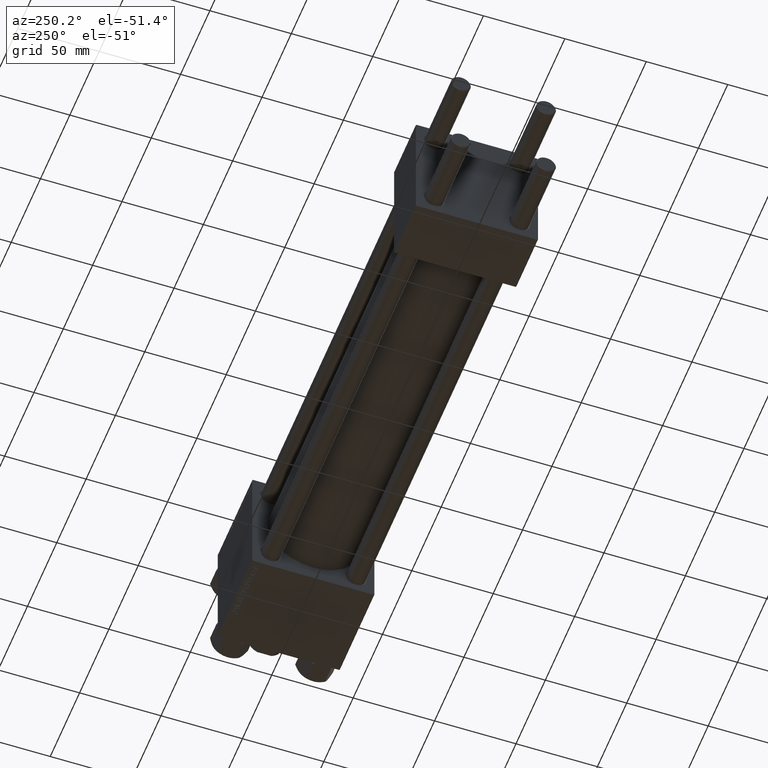
[diagram: clean part render]
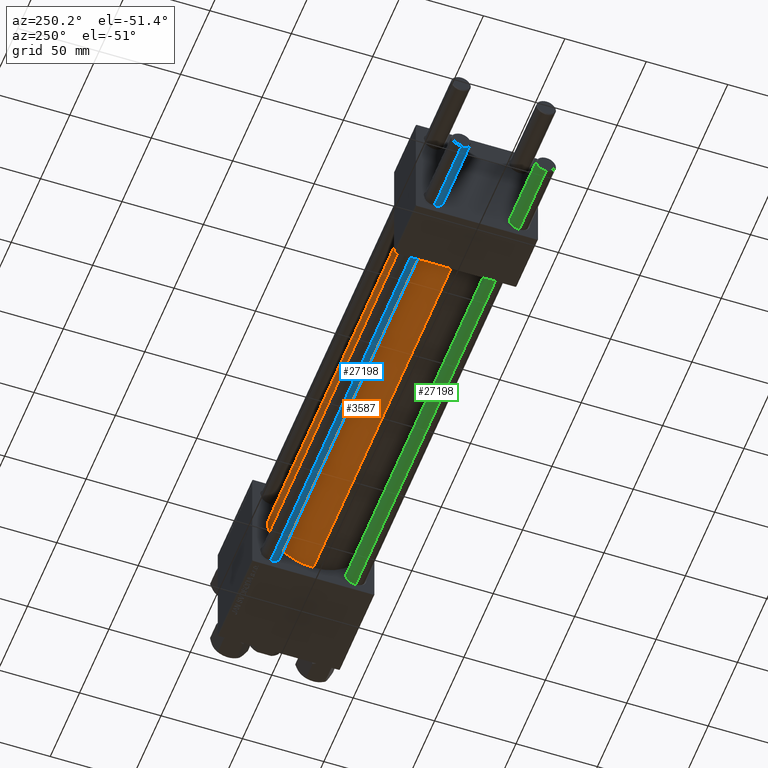
[diagram: same view with three faces highlighted in distinct colors, each labeled with its STEP entity id]
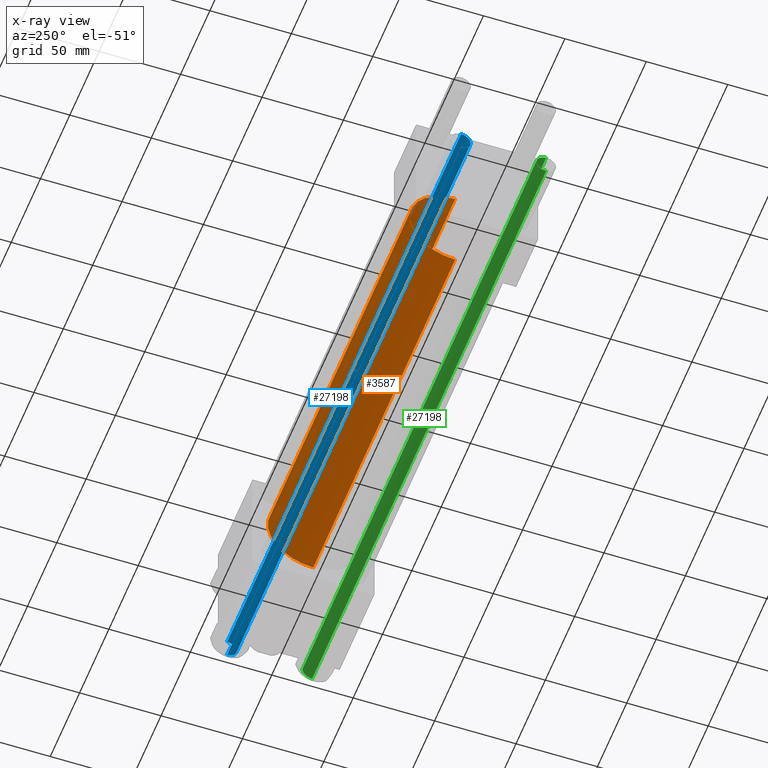
[diagram: x-ray of the same camera — body ghosted, the three highlighted faces saturated]
A machine part, auxiliary view with three faces highlighted in distinct colors.
The next image is the same camera in x-ray (body ghosted, the three faces saturated) — at least one of them is partly hidden behind the body in this view.
Their STEP definitions:

[orange] entity #3587 — the highlighted cylindrical surface (partial cylindrical patch) has radius 28 mm, axis along (-1, -0, -0).
#88 = CARTESIAN_POINT ( 'NONE',  ( 278.9999999999999432, 0.000000000000000000, 0.000000000000000000 ) ) ;
#870 = VECTOR ( 'NONE', #37811, 1000.000000000000000 ) ;
#2153 = DIRECTION ( 'NONE',  ( 0.000000000000000000, 0.000000000000000000, 1.000000000000000000 ) ) ;
#3332 = CARTESIAN_POINT ( 'NONE',  ( 278.9999999999999432, 3.429011037612589276E-15, -28.00000000000000000 ) ) ;
#3587 = ADVANCED_FACE ( 'NONE', ( #7172 ), #23070, .T. ) ;
#4455 = CARTESIAN_POINT ( 'NONE',  ( 37.00000000000000711, 3.429011037612589276E-15, -28.00000000000000000 ) ) ;
#7172 = FACE_OUTER_BOUND ( 'NONE', #20279, .T. ) ;
#8524 = CARTESIAN_POINT ( 'NONE',  ( 37.00000000000000711, 0.000000000000000000, 28.00000000000000000 ) ) ;
#9769 = DIRECTION ( 'NONE',  ( -1.000000000000000000, -0.000000000000000000, -0.000000000000000000 ) ) ;
#11150 = ORIENTED_EDGE ( 'NONE', *, *, #24212, .F. ) ;
#11441 = AXIS2_PLACEMENT_3D ( 'NONE', #36853, #29292, #44671 ) ;
#13552 = CARTESIAN_POINT ( 'NONE',  ( 278.9999999999999432, 0.000000000000000000, 28.00000000000000000 ) ) ;
#14661 = VERTEX_POINT ( 'NONE', #4455 ) ;
#15877 = ORIENTED_EDGE ( 'NONE', *, *, #29335, .F. ) ;
#16790 = EDGE_CURVE ( 'NONE', #14661, #33021, #36156, .T. ) ;
#18073 = DIRECTION ( 'NONE',  ( 1.000000000000000000, -0.000000000000000000, 0.000000000000000000 ) ) ;
#19145 = ORIENTED_EDGE ( 'NONE', *, *, #26833, .T. ) ;
#20099 = AXIS2_PLACEMENT_3D ( 'NONE', #88, #37968, #33948 ) ;
#20279 = EDGE_LOOP ( 'NONE', ( #15877, #19145, #44461, #11150 ) ) ;
#23070 = CYLINDRICAL_SURFACE ( 'NONE', #20099, 28.00000000000000000 ) ;
#23411 = CARTESIAN_POINT ( 'NONE',  ( 278.9999999999999432, 3.429011037612589276E-15, -28.00000000000000000 ) ) ;
#24212 = EDGE_CURVE ( 'NONE', #30876, #33021, #48878, .T. ) ;
#26218 = LINE ( 'NONE', #23411, #870 ) ;
#26833 = EDGE_CURVE ( 'NONE', #48657, #14661, #26218, .T. ) ;
#28351 = VECTOR ( 'NONE', #9769, 1000.000000000000000 ) ;
#29292 = DIRECTION ( 'NONE',  ( 1.000000000000000000, 0.000000000000000000, 0.000000000000000000 ) ) ;
#29335 = EDGE_CURVE ( 'NONE', #48657, #30876, #33212, .T. ) ;
#30506 = AXIS2_PLACEMENT_3D ( 'NONE', #41033, #18073, #2153 ) ;
#30876 = VERTEX_POINT ( 'NONE', #49148 ) ;
#33021 = VERTEX_POINT ( 'NONE', #8524 ) ;
#33212 = CIRCLE ( 'NONE', #11441, 28.00000000000000000 ) ;
#33948 = DIRECTION ( 'NONE',  ( 0.000000000000000000, 0.000000000000000000, 1.000000000000000000 ) ) ;
#36156 = CIRCLE ( 'NONE', #30506, 28.00000000000000000 ) ;
#36853 = CARTESIAN_POINT ( 'NONE',  ( 278.9999999999999432, 0.000000000000000000, 0.000000000000000000 ) ) ;
#37811 = DIRECTION ( 'NONE',  ( -1.000000000000000000, -0.000000000000000000, -0.000000000000000000 ) ) ;
#37968 = DIRECTION ( 'NONE',  ( -1.000000000000000000, -0.000000000000000000, -0.000000000000000000 ) ) ;
#41033 = CARTESIAN_POINT ( 'NONE',  ( 37.00000000000000711, 0.000000000000000000, 0.000000000000000000 ) ) ;
#44461 = ORIENTED_EDGE ( 'NONE', *, *, #16790, .T. ) ;
#44671 = DIRECTION ( 'NONE',  ( 0.000000000000000000, 0.000000000000000000, -1.000000000000000000 ) ) ;
#48657 = VERTEX_POINT ( 'NONE', #3332 ) ;
#48878 = LINE ( 'NONE', #13552, #28351 ) ;
#49148 = CARTESIAN_POINT ( 'NONE',  ( 278.9999999999999432, 0.000000000000000000, 28.00000000000000000 ) ) ;

[blue] entity #27198 — the highlighted cylindrical surface (edge-blend (fillet) strip) has radius 6 mm, axis along (1, 0, -0).
#160 = EDGE_CURVE ( 'NONE', #39756, #28341, #42559, .T. ) ;
#279 = ORIENTED_EDGE ( 'NONE', *, *, #38554, .F. ) ;
#453 = ORIENTED_EDGE ( 'NONE', *, *, #12256, .T. ) ;
#519 = DIRECTION ( 'NONE',  ( 1.000000000000000000, 0.000000000000000000, 0.000000000000000000 ) ) ;
#1603 = CARTESIAN_POINT ( 'NONE',  ( 6.000000000000000888, 7.347880794884120722E-16, 0.5000000000000004441 ) ) ;
#2649 = ORIENTED_EDGE ( 'NONE', *, *, #43809, .T. ) ;
#3161 = DIRECTION ( 'NONE',  ( -1.000000000000000000, 0.000000000000000000, 0.000000000000000000 ) ) ;
#4323 = DIRECTION ( 'NONE',  ( -0.000000000000000000, -0.000000000000000000, 1.000000000000000000 ) ) ;
#9235 = EDGE_LOOP ( 'NONE', ( #279, #453, #2649, #21387 ) ) ;
#9689 = CARTESIAN_POINT ( 'NONE',  ( 6.000000000000000888, 7.347880794884120722E-16, 400.0000000000000000 ) ) ;
#11656 = DIRECTION ( 'NONE',  ( 1.000000000000000000, 0.000000000000000000, 0.000000000000000000 ) ) ;
#12147 = DIRECTION ( 'NONE',  ( 0.000000000000000000, 0.000000000000000000, -1.000000000000000000 ) ) ;
#12256 = EDGE_CURVE ( 'NONE', #14703, #25350, #21094, .T. ) ;
#14535 = CYLINDRICAL_SURFACE ( 'NONE', #25091, 6.000000000000000888 ) ;
#14703 = VERTEX_POINT ( 'NONE', #17051 ) ;
#17051 = CARTESIAN_POINT ( 'NONE',  ( 6.000000000000000888, 7.347880794884120722E-16, 399.5000000000000000 ) ) ;
#17855 = AXIS2_PLACEMENT_3D ( 'NONE', #31583, #12147, #519 ) ;
#18215 = VECTOR ( 'NONE', #25092, 1000.000000000000000 ) ;
#19978 = CARTESIAN_POINT ( 'NONE',  ( 0.000000000000000000, 0.000000000000000000, 0.5000000000000004441 ) ) ;
#21094 = CIRCLE ( 'NONE', #17855, 6.000000000000000888 ) ;
#21387 = ORIENTED_EDGE ( 'NONE', *, *, #160, .T. ) ;
#21844 = CARTESIAN_POINT ( 'NONE',  ( -6.000000000000000888, 0.000000000000000000, 399.5000000000000000 ) ) ;
#22485 = LINE ( 'NONE', #42141, #38493 ) ;
#25091 = AXIS2_PLACEMENT_3D ( 'NONE', #34712, #45322, #3161 ) ;
#25092 = DIRECTION ( 'NONE',  ( -0.000000000000000000, -0.000000000000000000, -1.000000000000000000 ) ) ;
#25276 = CARTESIAN_POINT ( 'NONE',  ( -6.000000000000000888, 0.000000000000000000, 0.5000000000000004441 ) ) ;
#25350 = VERTEX_POINT ( 'NONE', #21844 ) ;
#27198 = ADVANCED_FACE ( 'NONE', ( #41772 ), #14535, .T. ) ;
#28341 = VERTEX_POINT ( 'NONE', #1603 ) ;
#31583 = CARTESIAN_POINT ( 'NONE',  ( 0.000000000000000000, 0.000000000000000000, 399.5000000000000000 ) ) ;
#34712 = CARTESIAN_POINT ( 'NONE',  ( 0.000000000000000000, 0.000000000000000000, 400.0000000000000000 ) ) ;
#38493 = VECTOR ( 'NONE', #41406, 1000.000000000000000 ) ;
#38554 = EDGE_CURVE ( 'NONE', #14703, #28341, #44260, .T. ) ;
#39756 = VERTEX_POINT ( 'NONE', #25276 ) ;
#41406 = DIRECTION ( 'NONE',  ( -0.000000000000000000, -0.000000000000000000, -1.000000000000000000 ) ) ;
#41772 = FACE_OUTER_BOUND ( 'NONE', #9235, .T. ) ;
#42141 = CARTESIAN_POINT ( 'NONE',  ( -6.000000000000000888, 0.000000000000000000, 400.0000000000000000 ) ) ;
#42559 = CIRCLE ( 'NONE', #44139, 6.000000000000000888 ) ;
#43809 = EDGE_CURVE ( 'NONE', #25350, #39756, #22485, .T. ) ;
#44139 = AXIS2_PLACEMENT_3D ( 'NONE', #19978, #4323, #11656 ) ;
#44260 = LINE ( 'NONE', #9689, #18215 ) ;
#45322 = DIRECTION ( 'NONE',  ( -0.000000000000000000, -0.000000000000000000, -1.000000000000000000 ) ) ;

[green] entity #27198 — the highlighted cylindrical surface (edge-blend (fillet) strip) has radius 6 mm, axis along (-1, 0, 0).
#160 = EDGE_CURVE ( 'NONE', #39756, #28341, #42559, .T. ) ;
#279 = ORIENTED_EDGE ( 'NONE', *, *, #38554, .F. ) ;
#453 = ORIENTED_EDGE ( 'NONE', *, *, #12256, .T. ) ;
#519 = DIRECTION ( 'NONE',  ( 1.000000000000000000, 0.000000000000000000, 0.000000000000000000 ) ) ;
#1603 = CARTESIAN_POINT ( 'NONE',  ( 6.000000000000000888, 7.347880794884120722E-16, 0.5000000000000004441 ) ) ;
#2649 = ORIENTED_EDGE ( 'NONE', *, *, #43809, .T. ) ;
#3161 = DIRECTION ( 'NONE',  ( -1.000000000000000000, 0.000000000000000000, 0.000000000000000000 ) ) ;
#4323 = DIRECTION ( 'NONE',  ( -0.000000000000000000, -0.000000000000000000, 1.000000000000000000 ) ) ;
#9235 = EDGE_LOOP ( 'NONE', ( #279, #453, #2649, #21387 ) ) ;
#9689 = CARTESIAN_POINT ( 'NONE',  ( 6.000000000000000888, 7.347880794884120722E-16, 400.0000000000000000 ) ) ;
#11656 = DIRECTION ( 'NONE',  ( 1.000000000000000000, 0.000000000000000000, 0.000000000000000000 ) ) ;
#12147 = DIRECTION ( 'NONE',  ( 0.000000000000000000, 0.000000000000000000, -1.000000000000000000 ) ) ;
#12256 = EDGE_CURVE ( 'NONE', #14703, #25350, #21094, .T. ) ;
#14535 = CYLINDRICAL_SURFACE ( 'NONE', #25091, 6.000000000000000888 ) ;
#14703 = VERTEX_POINT ( 'NONE', #17051 ) ;
#17051 = CARTESIAN_POINT ( 'NONE',  ( 6.000000000000000888, 7.347880794884120722E-16, 399.5000000000000000 ) ) ;
#17855 = AXIS2_PLACEMENT_3D ( 'NONE', #31583, #12147, #519 ) ;
#18215 = VECTOR ( 'NONE', #25092, 1000.000000000000000 ) ;
#19978 = CARTESIAN_POINT ( 'NONE',  ( 0.000000000000000000, 0.000000000000000000, 0.5000000000000004441 ) ) ;
#21094 = CIRCLE ( 'NONE', #17855, 6.000000000000000888 ) ;
#21387 = ORIENTED_EDGE ( 'NONE', *, *, #160, .T. ) ;
#21844 = CARTESIAN_POINT ( 'NONE',  ( -6.000000000000000888, 0.000000000000000000, 399.5000000000000000 ) ) ;
#22485 = LINE ( 'NONE', #42141, #38493 ) ;
#25091 = AXIS2_PLACEMENT_3D ( 'NONE', #34712, #45322, #3161 ) ;
#25092 = DIRECTION ( 'NONE',  ( -0.000000000000000000, -0.000000000000000000, -1.000000000000000000 ) ) ;
#25276 = CARTESIAN_POINT ( 'NONE',  ( -6.000000000000000888, 0.000000000000000000, 0.5000000000000004441 ) ) ;
#25350 = VERTEX_POINT ( 'NONE', #21844 ) ;
#27198 = ADVANCED_FACE ( 'NONE', ( #41772 ), #14535, .T. ) ;
#28341 = VERTEX_POINT ( 'NONE', #1603 ) ;
#31583 = CARTESIAN_POINT ( 'NONE',  ( 0.000000000000000000, 0.000000000000000000, 399.5000000000000000 ) ) ;
#34712 = CARTESIAN_POINT ( 'NONE',  ( 0.000000000000000000, 0.000000000000000000, 400.0000000000000000 ) ) ;
#38493 = VECTOR ( 'NONE', #41406, 1000.000000000000000 ) ;
#38554 = EDGE_CURVE ( 'NONE', #14703, #28341, #44260, .T. ) ;
#39756 = VERTEX_POINT ( 'NONE', #25276 ) ;
#41406 = DIRECTION ( 'NONE',  ( -0.000000000000000000, -0.000000000000000000, -1.000000000000000000 ) ) ;
#41772 = FACE_OUTER_BOUND ( 'NONE', #9235, .T. ) ;
#42141 = CARTESIAN_POINT ( 'NONE',  ( -6.000000000000000888, 0.000000000000000000, 400.0000000000000000 ) ) ;
#42559 = CIRCLE ( 'NONE', #44139, 6.000000000000000888 ) ;
#43809 = EDGE_CURVE ( 'NONE', #25350, #39756, #22485, .T. ) ;
#44139 = AXIS2_PLACEMENT_3D ( 'NONE', #19978, #4323, #11656 ) ;
#44260 = LINE ( 'NONE', #9689, #18215 ) ;
#45322 = DIRECTION ( 'NONE',  ( -0.000000000000000000, -0.000000000000000000, -1.000000000000000000 ) ) ;